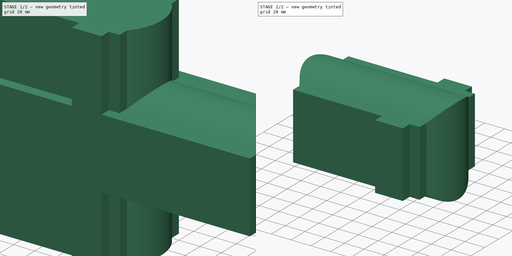
[diagram: build sequence overview — one tinted view per stage of 2, left to right]
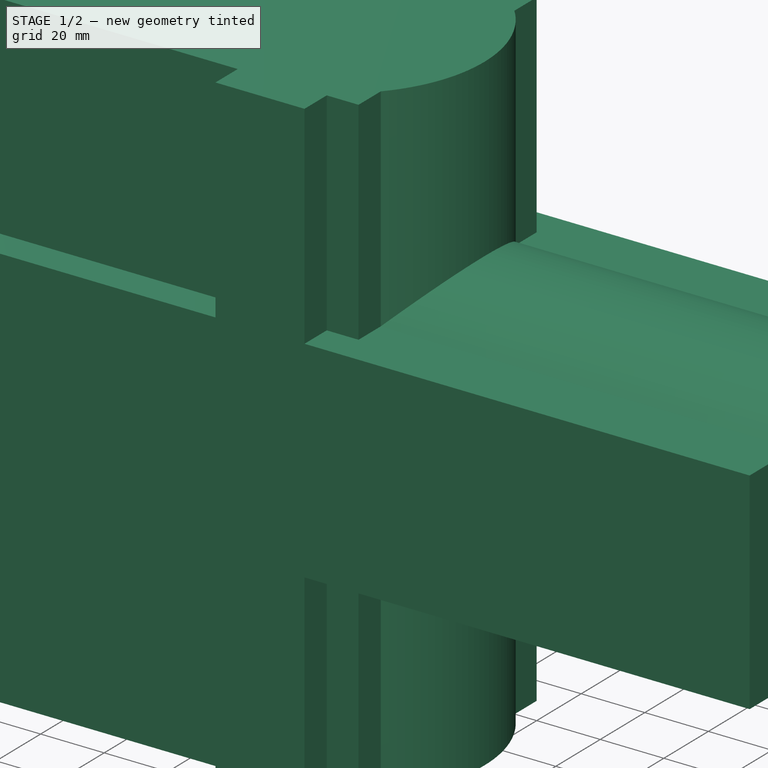
[diagram: stage 1 of 2 — iso view after this stage's code; geometry added in this stage tinted green]
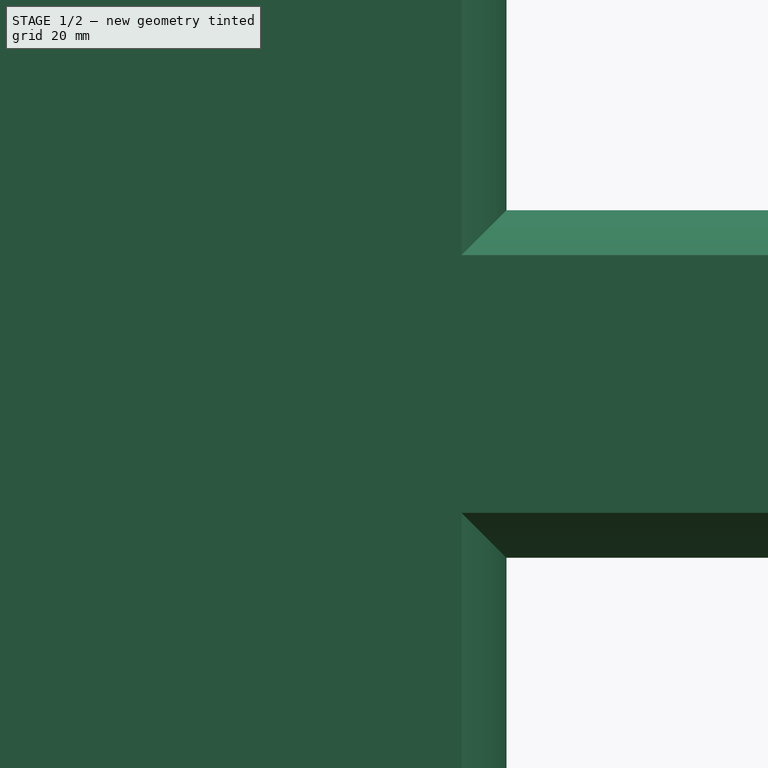
[diagram: stage 1 of 2 — front view after this stage's code; geometry added in this stage tinted green]
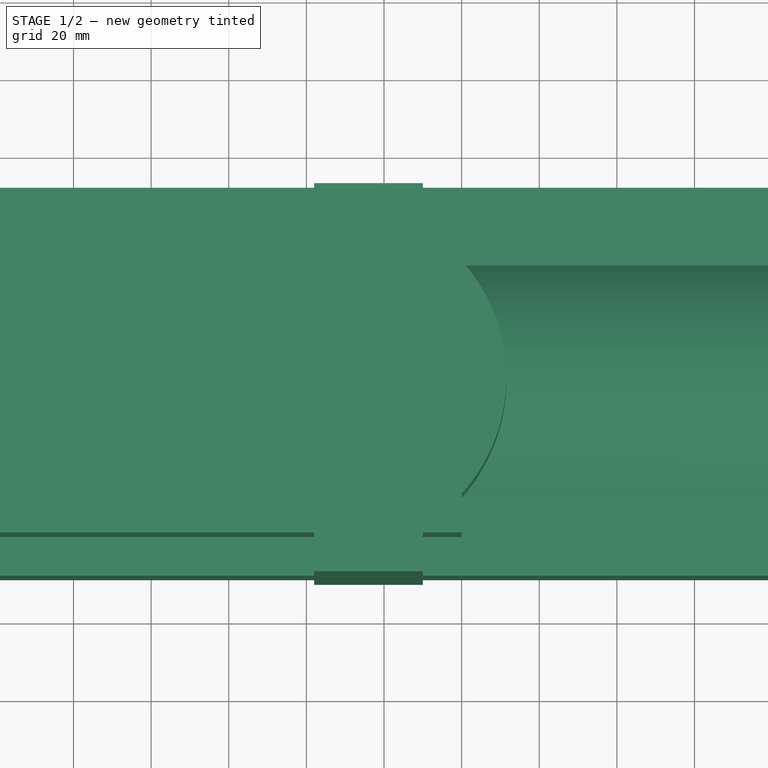
[diagram: stage 1 of 2 — top view after this stage's code; geometry added in this stage tinted green]
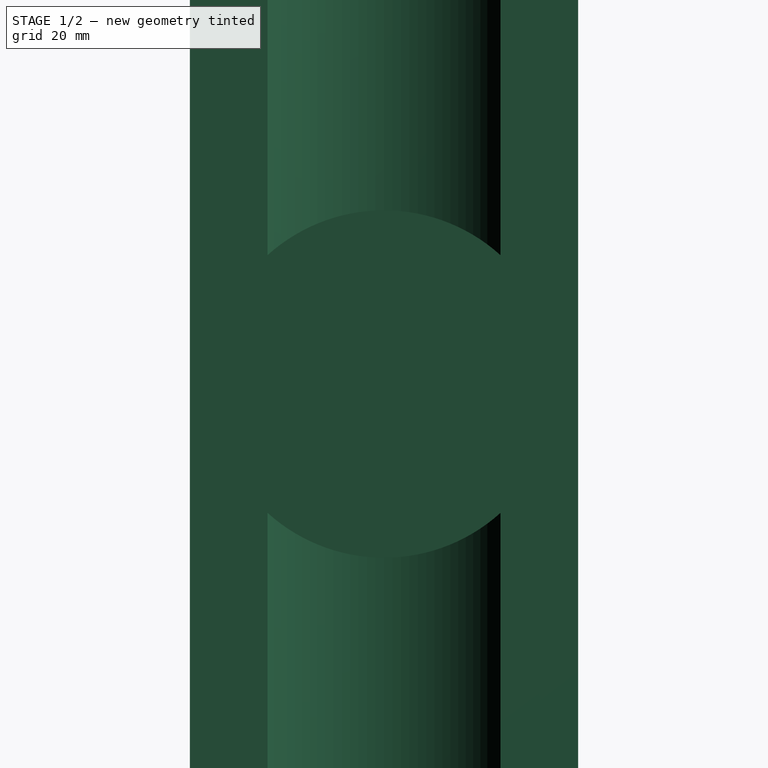
[diagram: stage 1 of 2 — right view after this stage's code; geometry added in this stage tinted green]
FCSTD DOCUMENT  (FreeCAD 0.18.4R)
Label: part8
License: All rights reserved
LicenseURL: http://en.wikipedia.org/wiki/All_rights_reserved
objects: Sketcher::SketchObject×2, PartDesign::Pad×2, PartDesign::Body×2, PartDesign::Boolean×1, App::Part×1
note: 9 computed .brp shape members not serialized (recipe doc carries the construction recipe); baked Part::Feature solids carry a one-line shape summary decoded from their .brp

FEATURE [Sketcher::SketchObject] Sketch
  MapMode = 5
  Placement = pos=(0,0,0) rot=(0.57735,0.57735,0.57735;2.0944rad)
  Support = -> [YZ_Plane001]
  sketch-geometry (8):
    g0: ArcOfCircle CenterX=2e-16 CenterY=0 CenterZ=0 NormalX=0 NormalY=0 NormalZ=1 AngleXU=0 Radius=44.75 StartAngle=0.836061 EndAngle=2.30553
    g1: ArcOfCircle CenterX=2e-16 CenterY=0 CenterZ=0 NormalX=0 NormalY=0 NormalZ=1 AngleXU=0 Radius=44.75 StartAngle=3.97765 EndAngle=5.44712
    g2: LineSegment StartX=-30 StartY=33.2049 StartZ=0 EndX=-50 EndY=33.2049 EndZ=0
    g3: LineSegment StartX=-50 StartY=33.2049 StartZ=0 EndX=-50 EndY=-33.2049 EndZ=0
    g4: LineSegment StartX=-50 StartY=-33.2049 StartZ=0 EndX=-30 EndY=-33.2049 EndZ=0
    g5: LineSegment StartX=30 StartY=-33.2049 StartZ=0 EndX=50 EndY=-33.2049 EndZ=0
    g6: LineSegment StartX=50 StartY=-33.2049 StartZ=0 EndX=50 EndY=33.2049 EndZ=0
    g7: LineSegment StartX=50 StartY=33.2049 StartZ=0 EndX=30 EndY=33.2049 EndZ=0
  constraints (21):
    c: Coincident(g2,g0)
    c: Horizontal(g2)
    c: Coincident(g3,g2)
    c: Vertical(g3)
    c: Coincident(g4,g3)
    c: Coincident(g4,g1)
    c: Coincident(g5,g1)
    c: Coincident(g6,g5)
    c: Coincident(g7,g6)
    c: Coincident(g7,g0)
    c: Coincident(g0,g-1)
    c: Coincident(g1,g0)
    c: Symmetric(g0,g1,g-1)
    c: Symmetric(g0,g0,g-2)
    c: Symmetric(g1,g1,g-2)
    c: Symmetric(g2,g6,g-2)
    c: Symmetric(g3,g5,g-2)
    c: Horizontal(g4)
    c: DistanceX(g2,g2) = 20
    c: DistanceX(g0,g0) = 60
    c: Radius(g0) = 44.75
FEATURE [PartDesign::Pad] Pad
  Length = 300
  Length2 = 100
  Midplane = true
  Placement = pos=(0,0,0) rot=(0.57735,0.57735,0.57735;2.0944rad)
  Profile = -> Sketch
  Type = 0
FEATURE [PartDesign::Body] Body
  Group = -> [Sketch,Pad]
  Origin = -> Origin001
  Tip = -> Pad
FEATURE [Sketcher::SketchObject] Sketch001
  MapMode = 5
  Support = -> [XY_Plane002]
  sketch-geometry (16):
    g0: ArcOfCircle CenterX=-13.2049 CenterY=-4.4e-15 CenterZ=0 NormalX=0 NormalY=0 NormalZ=1 AngleXU=0 Radius=44.75 StartAngle=5.54845 EndAngle=7.01792
    g1: ArcOfCircle CenterX=-74.7951 CenterY=2.54e-14 CenterZ=0 NormalX=0 NormalY=0 NormalZ=1 AngleXU=0 Radius=44.75 StartAngle=2.40686 EndAngle=3.87633
    g2: LineSegment StartX=20 StartY=30 StartZ=0 EndX=20 EndY=40 EndZ=0
    g3: LineSegment StartX=20 StartY=40 StartZ=0 EndX=10 EndY=40 EndZ=0
    g4: LineSegment StartX=10 StartY=40 StartZ=0 EndX=10 EndY=50 EndZ=0
    g5: LineSegment StartX=10 StartY=50 StartZ=0 EndX=-18 EndY=50 EndZ=0
    g6: LineSegment StartX=-18 StartY=50 StartZ=0 EndX=-18 EndY=40 EndZ=0
    g7: LineSegment StartX=-18 StartY=40 StartZ=0 EndX=-108 EndY=40 EndZ=0
    g8: LineSegment StartX=-108 StartY=40 StartZ=0 EndX=-108 EndY=30 EndZ=0
    g9: LineSegment StartX=-108 StartY=-30 StartZ=0 EndX=-108 EndY=-40 EndZ=0
    g10: LineSegment StartX=-108 StartY=-40 StartZ=0 EndX=-18 EndY=-40 EndZ=0
    g11: LineSegment StartX=-18 StartY=-40 StartZ=0 EndX=-18 EndY=-50 EndZ=0
    g12: LineSegment StartX=-18 StartY=-50 StartZ=0 EndX=10 EndY=-50 EndZ=0
    g13: LineSegment StartX=10 StartY=-50 StartZ=0 EndX=10 EndY=-40 EndZ=0
    g14: LineSegment StartX=10 StartY=-40 StartZ=0 EndX=20 EndY=-40 EndZ=0
    g15: LineSegment StartX=20 StartY=-40 StartZ=0 EndX=20 EndY=-30 EndZ=0
  constraints (42):
    c: Coincident(g2,g0)
    c: Coincident(g3,g2)
    c: Horizontal(g3)
    c: Coincident(g4,g3)
    c: Coincident(g5,g4)
    c: Coincident(g6,g5)
    c: Coincident(g7,g6)
    c: Horizontal(g7)
    c: Coincident(g8,g7)
    c: Coincident(g8,g1)
    c: Coincident(g9,g1)
    c: Vertical(g9)
    c: Coincident(g10,g9)
    c: Coincident(g11,g10)
    c: Coincident(g12,g11)
    c: Coincident(g13,g12)
    c: Coincident(g14,g13)
    c: Coincident(g15,g14)
    c: Coincident(g15,g0)
    c: Radius(g0) = 44.75
    c: Radius(g1) = 44.75
    c: DistanceY(g2,g2) = 10
    c: DistanceY(g4,g4) = 10
    c: Vertical(g2)
    c: Vertical(g4)
    c: Vertical(g6)
    c: Horizontal(g5)
    c: Symmetric(g0,g0,g-1)
    c: Symmetric(g2,g14,g-1)
    c: Symmetric(g1,g1,g-1)
    c: Symmetric(g7,g9,g-1)
    c: Symmetric(g10,g6,g-1)
    c: Symmetric(g11,g5,g-1)
    c: Symmetric(g4,g12,g-1)
    c: Symmetric(g13,g3,g-1)
    c: DistanceY(g0,g0) = 60
    c: DistanceY(g1,g1) = 60
    c: PointOnObject(g6,g3)
    c: DistanceX(g-1,g4) = 10
    c: DistanceX(g5,g-1) = 18
    c: DistanceX(g7,g-1) = 108
    c: DistanceX(g-1,g2) = 20
FEATURE [PartDesign::Pad] Pad001
  Length = 200
  Length2 = 100
  Midplane = true
  Profile = -> Sketch001
  Type = 0
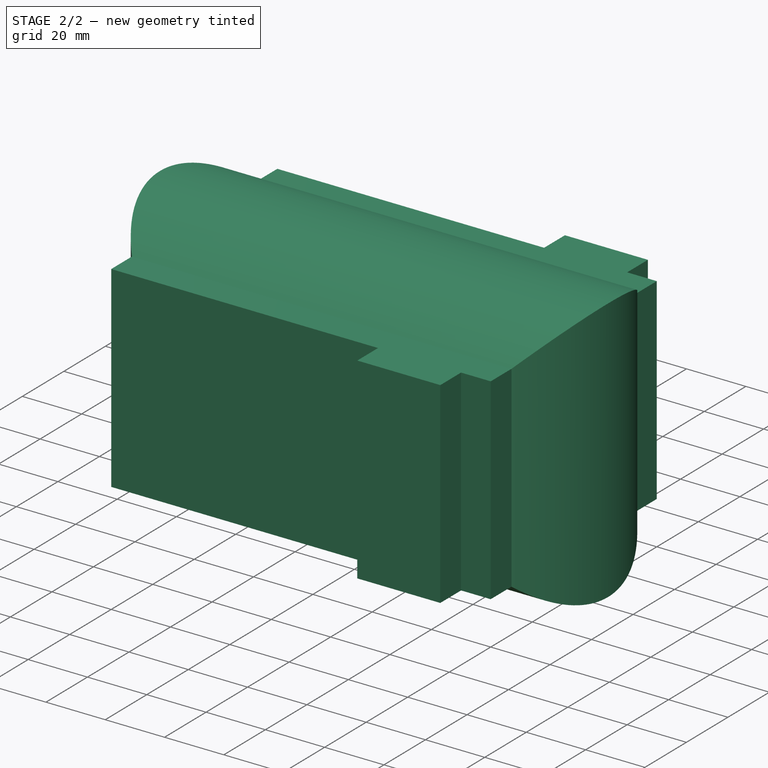
[diagram: stage 2 of 2 — iso view after this stage's code; geometry added in this stage tinted green]
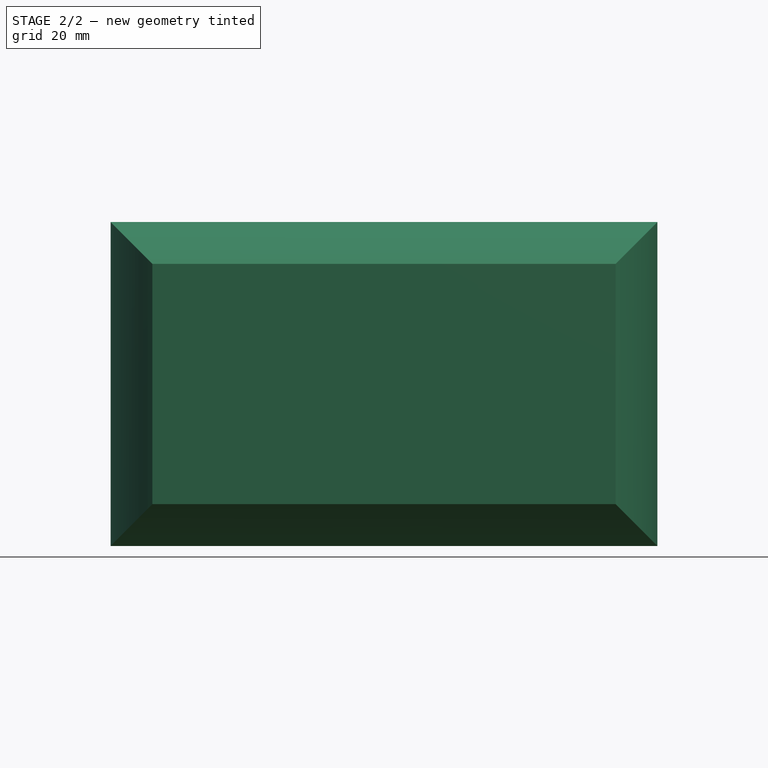
[diagram: stage 2 of 2 — front view after this stage's code; geometry added in this stage tinted green]
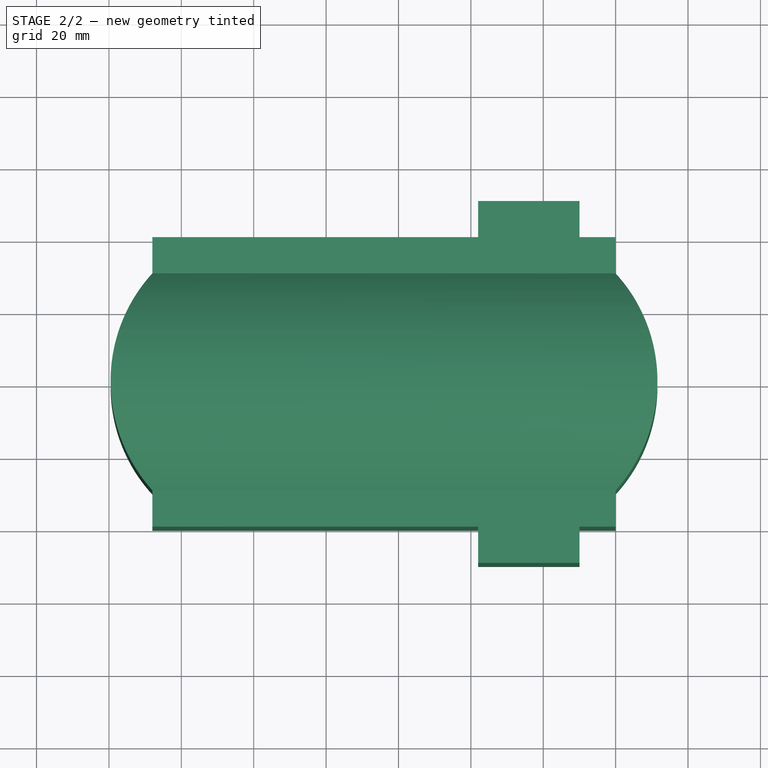
[diagram: stage 2 of 2 — top view after this stage's code; geometry added in this stage tinted green]
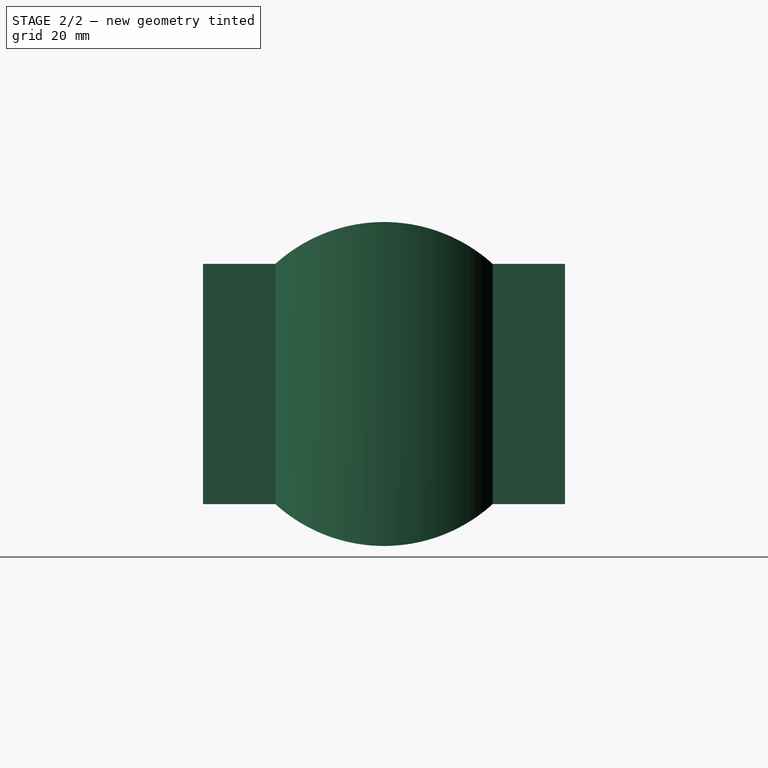
[diagram: stage 2 of 2 — right view after this stage's code; geometry added in this stage tinted green]
FEATURE [PartDesign::Boolean] Boolean
  BaseFeature = -> Pad001
  Group = -> [Body]
  Type = 2
FEATURE [PartDesign::Body] Body001
  Group = -> [Sketch001,Pad001,Boolean]
  Origin = -> Origin002
  Tip = -> Boolean
FEATURE [App::Part] Part  label="part8"
  Group = -> [Body001]
  Origin = -> Origin
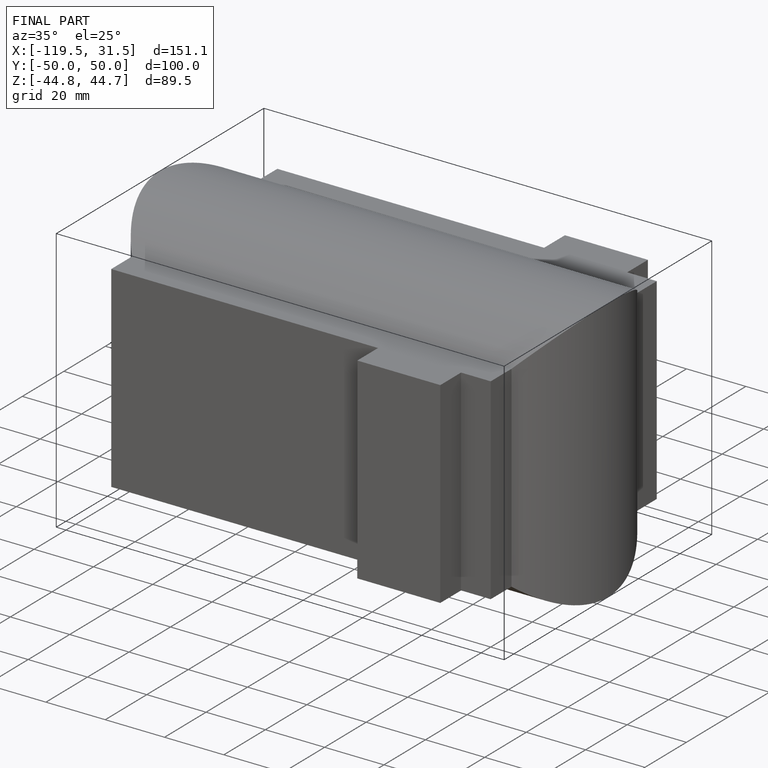
[diagram: finished part — iso view with bounding-box wireframe]
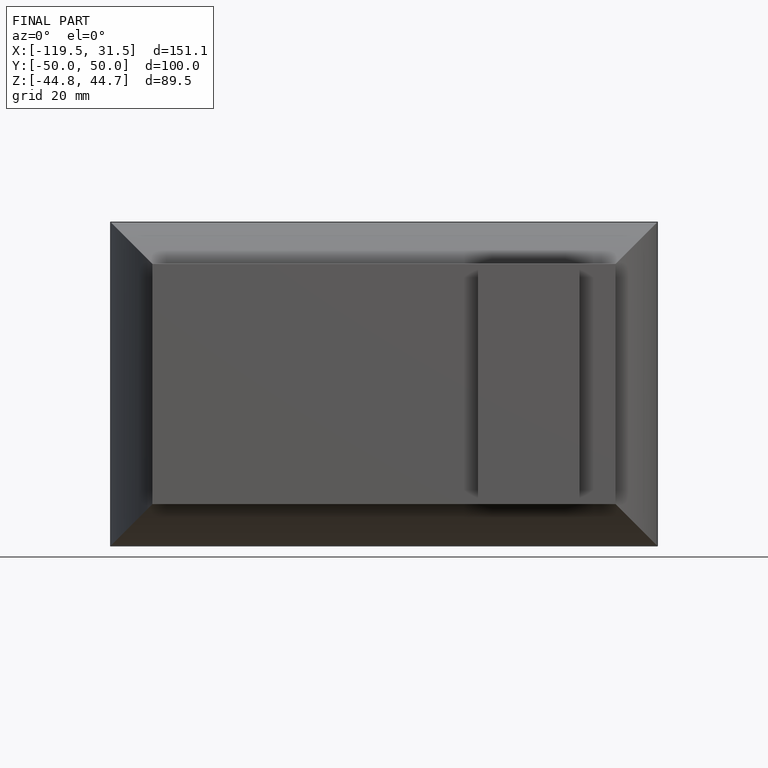
[diagram: finished part — front view with bounding-box wireframe]
